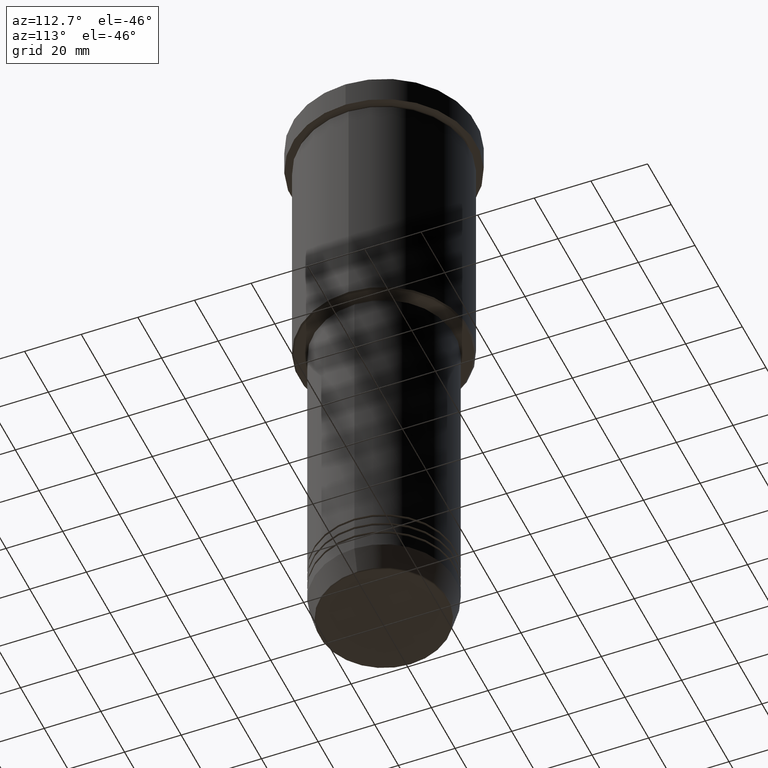
[diagram: clean part render]
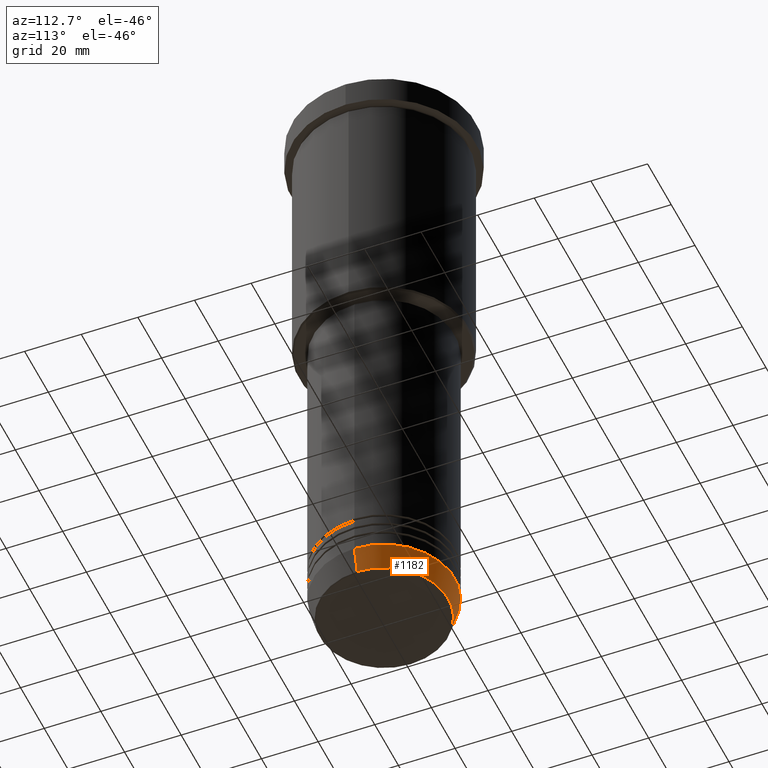
[diagram: same view with one face highlighted and labeled with its STEP entity id]
A machine part, auxiliary view. The second image highlights one B-rep face of the part: STEP entity #1182.
In plain terms, the highlighted conical surface has half-angle 15 deg.
Its self-contained STEP definition (entity closure, byte-faithful):
#58 = VERTEX_POINT ( 'NONE', #646 ) ;
#62 = AXIS2_PLACEMENT_3D ( 'NONE', #637, #194, #250 ) ;
#71 = CARTESIAN_POINT ( 'NONE',  ( -25.00000000000000000, 3.061616997868383043E-15, -211.0000000000000000 ) ) ;
#111 = FACE_OUTER_BOUND ( 'NONE', #588, .T. ) ;
#117 = ORIENTED_EDGE ( 'NONE', *, *, #135, .F. ) ;
#120 = DIRECTION ( 'NONE',  ( -0.000000000000000000, -0.000000000000000000, 1.000000000000000000 ) ) ;
#124 = CONICAL_SURFACE ( 'NONE', #487, 25.00000000000000000, 0.2617993877991499629 ) ;
#128 = CARTESIAN_POINT ( 'NONE',  ( 0.000000000000000000, 0.000000000000000000, -211.0000000000000000 ) ) ;
#135 = EDGE_CURVE ( 'NONE', #58, #1114, #955, .T. ) ;
#170 = ORIENTED_EDGE ( 'NONE', *, *, #510, .T. ) ;
#194 = DIRECTION ( 'NONE',  ( -0.000000000000000000, -0.000000000000000000, 1.000000000000000000 ) ) ;
#197 = VERTEX_POINT ( 'NONE', #311 ) ;
#199 = LINE ( 'NONE', #643, #484 ) ;
#204 = DIRECTION ( 'NONE',  ( 1.000000000000000000, 0.000000000000000000, 0.000000000000000000 ) ) ;
#207 = EDGE_CURVE ( 'NONE', #1148, #197, #989, .T. ) ;
#250 = DIRECTION ( 'NONE',  ( 1.000000000000000000, 0.000000000000000000, 0.000000000000000000 ) ) ;
#273 = VECTOR ( 'NONE', #791, 1000.000000000000114 ) ;
#288 = ORIENTED_EDGE ( 'NONE', *, *, #321, .F. ) ;
#296 = CARTESIAN_POINT ( 'NONE',  ( 22.68775668727493766, 0.000000000000000000, -219.6294095225512422 ) ) ;
#300 = DIRECTION ( 'NONE',  ( 1.000000000000000000, 0.000000000000000000, 0.000000000000000000 ) ) ;
#311 = CARTESIAN_POINT ( 'NONE',  ( -22.68775668727493766, 2.920032929279452187E-15, -219.6294095225512422 ) ) ;
#321 = EDGE_CURVE ( 'NONE', #1148, #58, #199, .T. ) ;
#326 = AXIS2_PLACEMENT_3D ( 'NONE', #757, #120, #300 ) ;
#342 = LINE ( 'NONE', #71, #273 ) ;
#484 = VECTOR ( 'NONE', #734, 1000.000000000000114 ) ;
#487 = AXIS2_PLACEMENT_3D ( 'NONE', #128, #1032, #204 ) ;
#488 = CARTESIAN_POINT ( 'NONE',  ( -25.00000000000000000, 3.061616997868383043E-15, -211.0000000000000000 ) ) ;
#510 = EDGE_CURVE ( 'NONE', #197, #1114, #342, .T. ) ;
#588 = EDGE_LOOP ( 'NONE', ( #608, #170, #117, #288 ) ) ;
#608 = ORIENTED_EDGE ( 'NONE', *, *, #207, .T. ) ;
#637 = CARTESIAN_POINT ( 'NONE',  ( 0.000000000000000000, 0.000000000000000000, -211.0000000000000000 ) ) ;
#643 = CARTESIAN_POINT ( 'NONE',  ( 25.00000000000000000, 0.000000000000000000, -211.0000000000000000 ) ) ;
#646 = CARTESIAN_POINT ( 'NONE',  ( 25.00000000000000000, 0.000000000000000000, -211.0000000000000000 ) ) ;
#734 = DIRECTION ( 'NONE',  ( 0.2588190451025212391, 0.000000000000000000, 0.9659258262890680902 ) ) ;
#757 = CARTESIAN_POINT ( 'NONE',  ( 0.000000000000000000, 0.000000000000000000, -219.6294095225512422 ) ) ;
#791 = DIRECTION ( 'NONE',  ( -0.2588190451025212391, 3.169619151431771721E-17, 0.9659258262890680902 ) ) ;
#955 = CIRCLE ( 'NONE', #62, 25.00000000000000000 ) ;
#989 = CIRCLE ( 'NONE', #326, 22.68775668727493766 ) ;
#1032 = DIRECTION ( 'NONE',  ( -0.000000000000000000, -0.000000000000000000, 1.000000000000000000 ) ) ;
#1114 = VERTEX_POINT ( 'NONE', #488 ) ;
#1148 = VERTEX_POINT ( 'NONE', #296 ) ;
#1182 = ADVANCED_FACE ( 'NONE', ( #111 ), #124, .T. ) ;